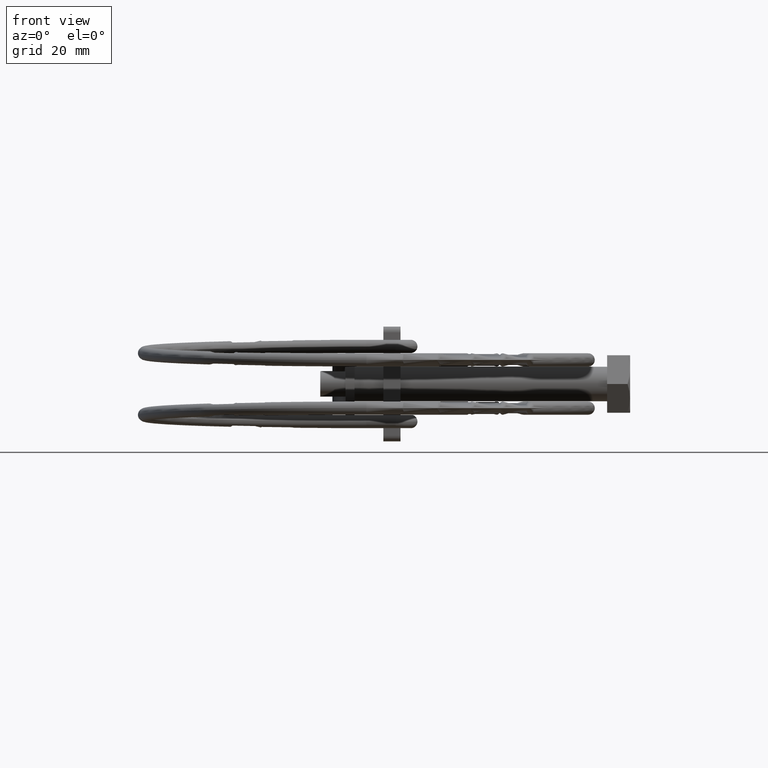
[diagram: clean part render]
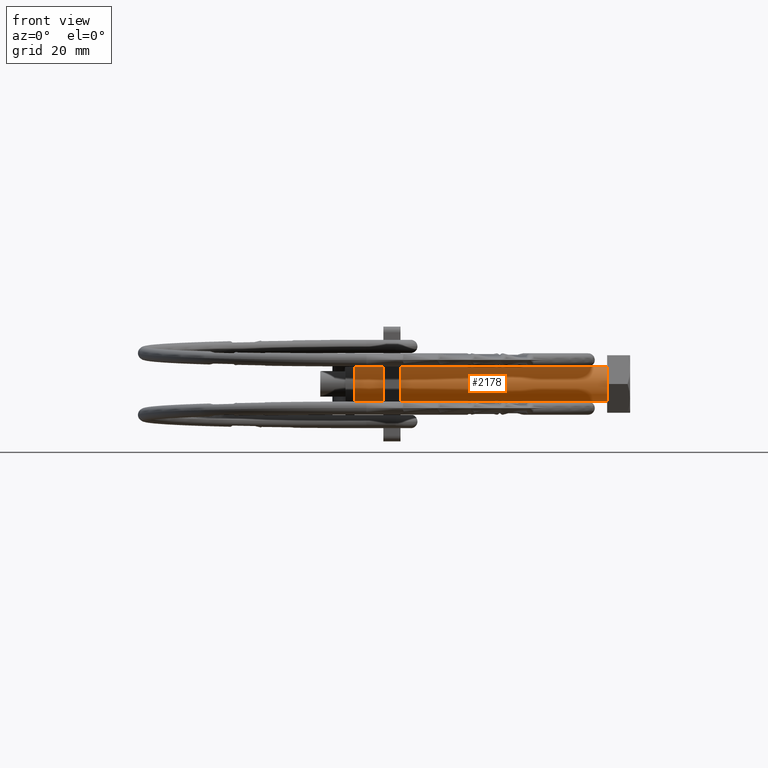
[diagram: same view with one face highlighted and labeled with its STEP entity id]
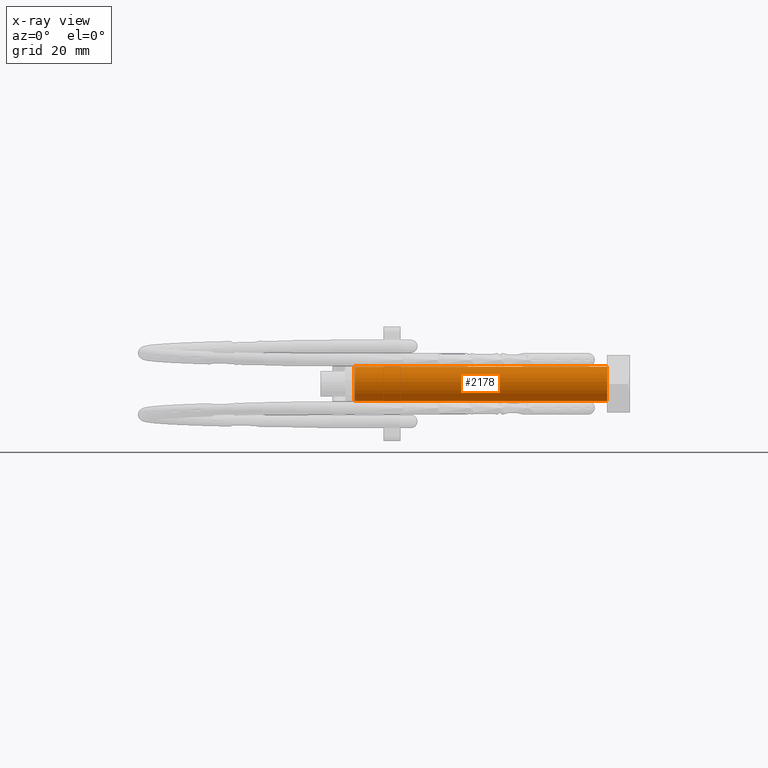
[diagram: x-ray of the same camera — body ghosted, the highlighted face saturated]
A machine part, front view. The second image highlights one B-rep face of the part: STEP entity #2178.
The next image is the same camera in x-ray: the body ghosted, the highlighted face saturated — about 0% of this face is hidden behind the body in this view.
In plain terms, the highlighted cylindrical surface (edge-blend (fillet) strip) has radius 3 mm, axis along (1, 0, 0).
Its self-contained STEP definition (entity closure, byte-faithful):
#4 = VERTEX_POINT ( 'NONE', #2601 ) ;
#38 = CARTESIAN_POINT ( 'NONE',  ( -44.00000000000000000, 3.673940397442060400E-016, 3.000000000000000400 ) ) ;
#51 = ORIENTED_EDGE ( 'NONE', *, *, #2158, .T. ) ;
#91 = EDGE_CURVE ( 'NONE', #106, #168, #1327, .T. ) ;
#106 = VERTEX_POINT ( 'NONE', #596 ) ;
#122 = DIRECTION ( 'NONE',  ( 0.0000000000000000000, 0.0000000000000000000, -1.000000000000000000 ) ) ;
#151 = DIRECTION ( 'NONE',  ( 1.000000000000000000, -0.0000000000000000000, -0.0000000000000000000 ) ) ;
#168 = VERTEX_POINT ( 'NONE', #1413 ) ;
#198 = AXIS2_PLACEMENT_3D ( 'NONE', #3010, #1556, #122 ) ;
#595 = AXIS2_PLACEMENT_3D ( 'NONE', #1587, #151, #1819 ) ;
#596 = CARTESIAN_POINT ( 'NONE',  ( 0.0000000000000000000, 3.673940397442060400E-016, 3.000000000000000400 ) ) ;
#798 = VECTOR ( 'NONE', #2555, 1000.000000000000000 ) ;
#813 = LINE ( 'NONE', #1339, #798 ) ;
#830 = VECTOR ( 'NONE', #1440, 1000.000000000000000 ) ;
#872 = DIRECTION ( 'NONE',  ( 0.0000000000000000000, 0.0000000000000000000, -1.000000000000000000 ) ) ;
#944 = EDGE_CURVE ( 'NONE', #1385, #106, #813, .T. ) ;
#1012 = FACE_OUTER_BOUND ( 'NONE', #2085, .T. ) ;
#1327 = CIRCLE ( 'NONE', #198, 3.000000000000000400 ) ;
#1339 = CARTESIAN_POINT ( 'NONE',  ( -44.00000000000000000, 3.673940397442060400E-016, 3.000000000000000400 ) ) ;
#1385 = VERTEX_POINT ( 'NONE', #38 ) ;
#1413 = CARTESIAN_POINT ( 'NONE',  ( 0.0000000000000000000, 0.0000000000000000000, -3.000000000000000400 ) ) ;
#1440 = DIRECTION ( 'NONE',  ( 1.000000000000000000, 0.0000000000000000000, 0.0000000000000000000 ) ) ;
#1447 = LINE ( 'NONE', #2898, #830 ) ;
#1452 = ORIENTED_EDGE ( 'NONE', *, *, #944, .F. ) ;
#1556 = DIRECTION ( 'NONE',  ( 1.000000000000000000, 0.0000000000000000000, 0.0000000000000000000 ) ) ;
#1566 = AXIS2_PLACEMENT_3D ( 'NONE', #2561, #2297, #872 ) ;
#1587 = CARTESIAN_POINT ( 'NONE',  ( -44.00000000000000000, 0.0000000000000000000, 0.0000000000000000000 ) ) ;
#1819 = DIRECTION ( 'NONE',  ( 0.0000000000000000000, 0.0000000000000000000, 1.000000000000000000 ) ) ;
#2012 = EDGE_CURVE ( 'NONE', #4, #168, #1447, .T. ) ;
#2085 = EDGE_LOOP ( 'NONE', ( #1452, #51, #2109, #2155 ) ) ;
#2109 = ORIENTED_EDGE ( 'NONE', *, *, #2012, .T. ) ;
#2155 = ORIENTED_EDGE ( 'NONE', *, *, #91, .F. ) ;
#2158 = EDGE_CURVE ( 'NONE', #1385, #4, #2937, .T. ) ;
#2178 = ADVANCED_FACE ( 'NONE', ( #1012 ), #2210, .T. ) ;
#2210 = CYLINDRICAL_SURFACE ( 'NONE', #1566, 3.000000000000000400 ) ;
#2297 = DIRECTION ( 'NONE',  ( 1.000000000000000000, 0.0000000000000000000, 0.0000000000000000000 ) ) ;
#2555 = DIRECTION ( 'NONE',  ( 1.000000000000000000, 0.0000000000000000000, 0.0000000000000000000 ) ) ;
#2561 = CARTESIAN_POINT ( 'NONE',  ( -44.00000000000000000, 0.0000000000000000000, 0.0000000000000000000 ) ) ;
#2601 = CARTESIAN_POINT ( 'NONE',  ( -44.00000000000000000, 0.0000000000000000000, -3.000000000000000400 ) ) ;
#2898 = CARTESIAN_POINT ( 'NONE',  ( -44.00000000000000000, 0.0000000000000000000, -3.000000000000000400 ) ) ;
#2937 = CIRCLE ( 'NONE', #595, 3.000000000000000400 ) ;
#3010 = CARTESIAN_POINT ( 'NONE',  ( 0.0000000000000000000, 0.0000000000000000000, 0.0000000000000000000 ) ) ;